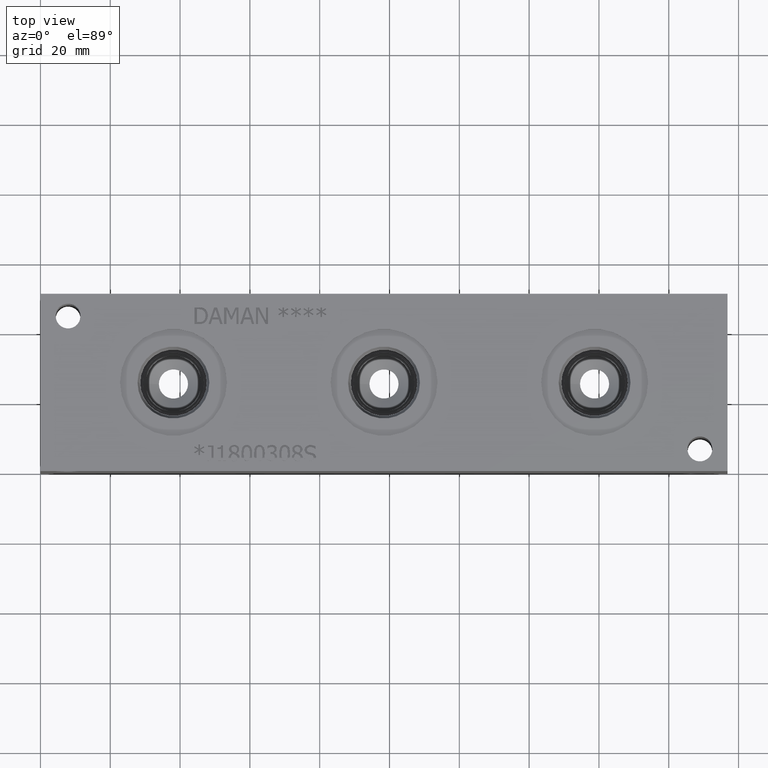
[diagram: clean part render]
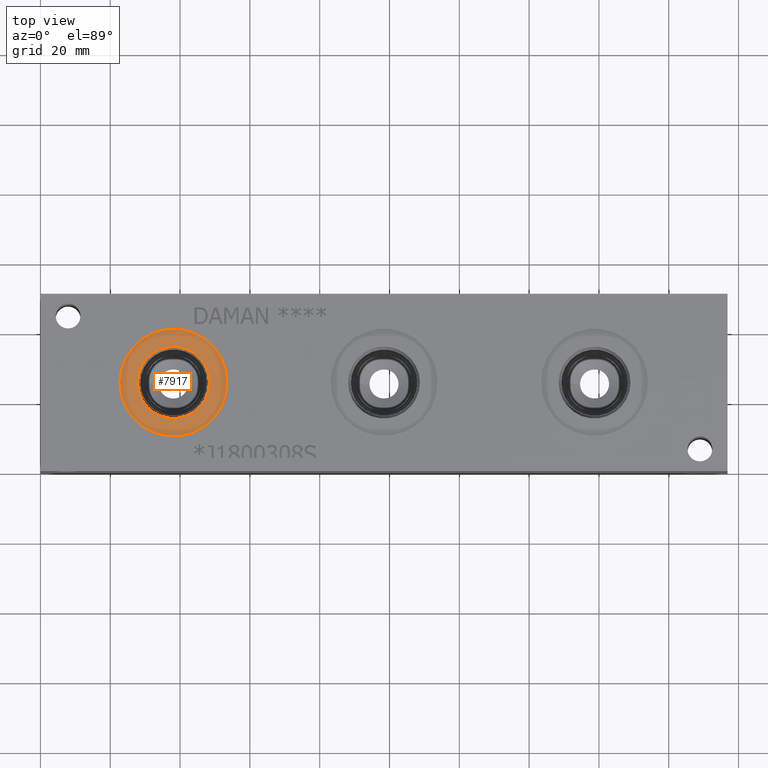
[diagram: same view with one face highlighted and labeled with its STEP entity id]
A machine part, top view. The second image highlights one B-rep face of the part: STEP entity #7917.
In plain terms, the highlighted planar face has unit normal (0, 0, -1).
Its self-contained STEP definition (entity closure, byte-faithful):
#205=CIRCLE('',#8343,15.3162);
#206=CIRCLE('',#8344,15.3162);
#207=CIRCLE('',#8346,10.2997);
#208=CIRCLE('',#8347,10.2997);
#258=FACE_BOUND('',#1337,.T.);
#482=PLANE('',#8345);
#885=FACE_OUTER_BOUND('',#1336,.T.);
#1336=EDGE_LOOP('',(#7023,#7024));
#1337=EDGE_LOOP('',(#7025,#7026));
#3763=VERTEX_POINT('',#13723);
#3764=VERTEX_POINT('',#13725);
#3765=VERTEX_POINT('',#13729);
#3766=VERTEX_POINT('',#13730);
#4858=EDGE_CURVE('',#3763,#3764,#205,.T.);
#4859=EDGE_CURVE('',#3764,#3763,#206,.T.);
#4860=EDGE_CURVE('',#3765,#3766,#207,.T.);
#4861=EDGE_CURVE('',#3766,#3765,#208,.T.);
#7023=ORIENTED_EDGE('',*,*,#4859,.F.);
#7024=ORIENTED_EDGE('',*,*,#4858,.F.);
#7025=ORIENTED_EDGE('',*,*,#4860,.T.);
#7026=ORIENTED_EDGE('',*,*,#4861,.T.);
#7917=ADVANCED_FACE('',(#885,#258),#482,.F.);
#8343=AXIS2_PLACEMENT_3D('',#13726,#9875,#9876);
#8344=AXIS2_PLACEMENT_3D('',#13727,#9877,#9878);
#8345=AXIS2_PLACEMENT_3D('',#13728,#9879,#9880);
#8346=AXIS2_PLACEMENT_3D('',#13731,#9881,#9882);
#8347=AXIS2_PLACEMENT_3D('',#13732,#9883,#9884);
#9875=DIRECTION('center_axis',(0.,0.,-1.));
#9876=DIRECTION('ref_axis',(1.,0.,0.));
#9877=DIRECTION('center_axis',(0.,0.,-1.));
#9878=DIRECTION('ref_axis',(1.,0.,0.));
#9879=DIRECTION('center_axis',(0.,0.,-1.));
#9880=DIRECTION('ref_axis',(-1.,0.,0.));
#9881=DIRECTION('center_axis',(0.,0.,-1.));
#9882=DIRECTION('ref_axis',(1.,0.,0.));
#9883=DIRECTION('center_axis',(0.,0.,-1.));
#9884=DIRECTION('ref_axis',(1.,0.,0.));
#13723=CARTESIAN_POINT('',(22.7838,25.4,50.0126));
#13725=CARTESIAN_POINT('',(53.4162,25.4,50.0126));
#13726=CARTESIAN_POINT('Origin',(38.1,25.4,50.0126));
#13727=CARTESIAN_POINT('Origin',(38.1,25.4,50.0126));
#13728=CARTESIAN_POINT('Origin',(48.3997,25.4,50.0126));
#13729=CARTESIAN_POINT('',(48.3997,25.4,50.0126));
#13730=CARTESIAN_POINT('',(27.8003,25.4,50.0126));
#13731=CARTESIAN_POINT('Origin',(38.1,25.4,50.0126));
#13732=CARTESIAN_POINT('Origin',(38.1,25.4,50.0126));